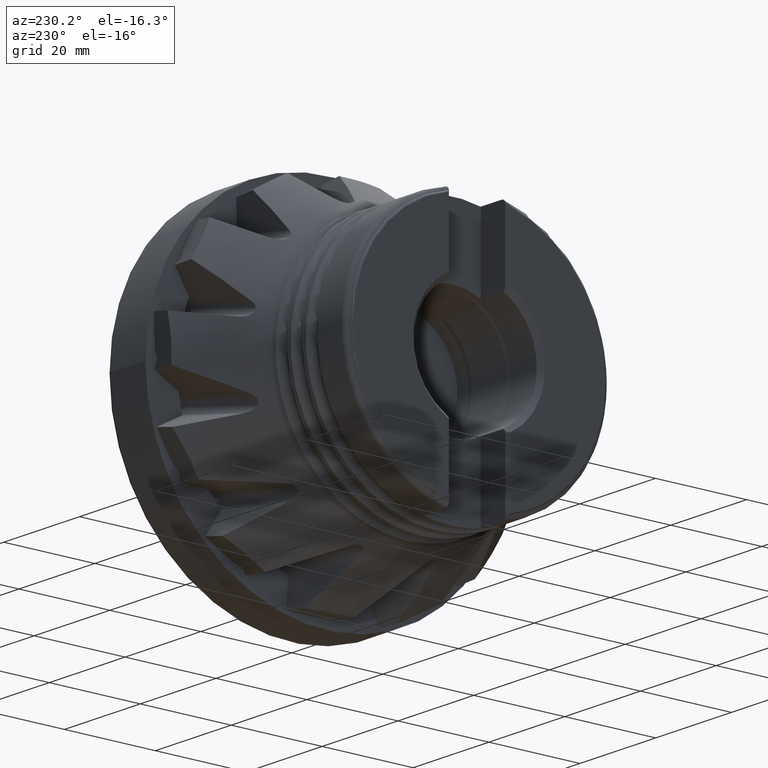
[diagram: clean part render]
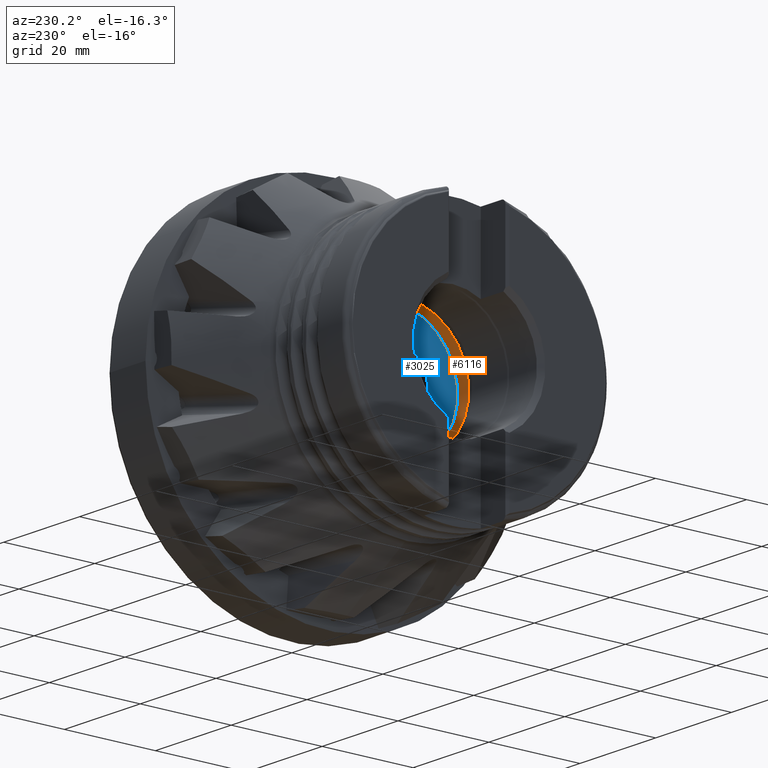
[diagram: same view with the hole feature highlighted: cylindrical wall and planar end face, labeled with their STEP entity ids]
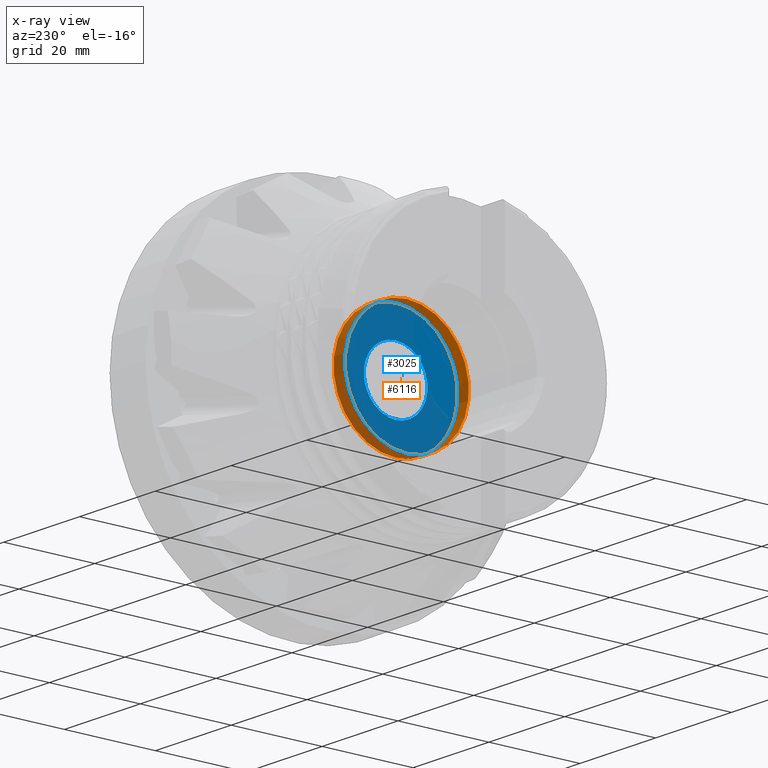
[diagram: x-ray of the same camera — body ghosted, the hole faces saturated]
A machine part, auxiliary view. The highlighted faces form one hole feature of diameter 27.3 mm: the cylindrical wall (entity #6116, orange) and its adjacent planar end face (entity #3025, blue) — they share a circular edge in the B-rep.
The next image is the same camera in x-ray (body ghosted, the hole faces saturated) — the bore reads through the body.
Wall:
#155 = DIRECTION ( 'NONE',  ( 0.0000000000000000000, 0.0000000000000000000, -1.000000000000000000 ) ) ;
#462 = CARTESIAN_POINT ( 'NONE',  ( -27.40000000000000200, 0.0000000000000000000, 0.0000000000000000000 ) ) ;
#1061 = ORIENTED_EDGE ( 'NONE', *, *, #8811, .T. ) ;
#1177 = DIRECTION ( 'NONE',  ( 0.0000000000000000000, 0.0000000000000000000, -1.000000000000000000 ) ) ;
#2870 = AXIS2_PLACEMENT_3D ( 'NONE', #462, #5503, #1177 ) ;
#3118 = EDGE_LOOP ( 'NONE', ( #4296 ) ) ;
#3567 = CIRCLE ( 'NONE', #4962, 13.64999999999999700 ) ;
#3657 = AXIS2_PLACEMENT_3D ( 'NONE', #4970, #8576, #9295 ) ;
#3751 = VERTEX_POINT ( 'NONE', #5663 ) ;
#4296 = ORIENTED_EDGE ( 'NONE', *, *, #8562, .F. ) ;
#4442 = CIRCLE ( 'NONE', #2870, 13.64999999999999700 ) ;
#4509 = DIRECTION ( 'NONE',  ( 1.000000000000000000, -0.0000000000000000000, -0.0000000000000000000 ) ) ;
#4962 = AXIS2_PLACEMENT_3D ( 'NONE', #8814, #4509, #155 ) ;
#4970 = CARTESIAN_POINT ( 'NONE',  ( 0.0000000000000000000, 0.0000000000000000000, 0.0000000000000000000 ) ) ;
#5445 = CYLINDRICAL_SURFACE ( 'NONE', #3657, 13.64999999999999700 ) ;
#5503 = DIRECTION ( 'NONE',  ( 1.000000000000000000, -0.0000000000000000000, -0.0000000000000000000 ) ) ;
#5663 = CARTESIAN_POINT ( 'NONE',  ( -30.33269454164236100, 0.0000000000000000000, -13.64999999999999700 ) ) ;
#6116 = ADVANCED_FACE ( 'NONE', ( #7123, #6573 ), #5445, .F. ) ;
#6395 = CARTESIAN_POINT ( 'NONE',  ( -27.40000000000000200, 0.0000000000000000000, -13.64999999999999700 ) ) ;
#6573 = FACE_OUTER_BOUND ( 'NONE', #6598, .T. ) ;
#6598 = EDGE_LOOP ( 'NONE', ( #1061 ) ) ;
#7123 = FACE_OUTER_BOUND ( 'NONE', #3118, .T. ) ;
#8562 = EDGE_CURVE ( 'NONE', #3751, #3751, #3567, .T. ) ;
#8576 = DIRECTION ( 'NONE',  ( 1.000000000000000000, -0.0000000000000000000, -0.0000000000000000000 ) ) ;
#8811 = EDGE_CURVE ( 'NONE', #9274, #9274, #4442, .T. ) ;
#8814 = CARTESIAN_POINT ( 'NONE',  ( -30.33269454164236100, 0.0000000000000000000, 0.0000000000000000000 ) ) ;
#9274 = VERTEX_POINT ( 'NONE', #6395 ) ;
#9295 = DIRECTION ( 'NONE',  ( 0.0000000000000000000, 0.0000000000000000000, -1.000000000000000000 ) ) ;
End face:
#93 = EDGE_LOOP ( 'NONE', ( #7221 ) ) ;
#330 = CIRCLE ( 'NONE', #1546, 6.999999999999965400 ) ;
#431 = EDGE_LOOP ( 'NONE', ( #7779 ) ) ;
#462 = CARTESIAN_POINT ( 'NONE',  ( -27.40000000000000200, 0.0000000000000000000, 0.0000000000000000000 ) ) ;
#517 = FACE_OUTER_BOUND ( 'NONE', #93, .T. ) ;
#592 = CARTESIAN_POINT ( 'NONE',  ( -27.40000000000000200, 0.0000000000000000000, -6.999999999999965400 ) ) ;
#747 = FACE_BOUND ( 'NONE', #431, .T. ) ;
#1177 = DIRECTION ( 'NONE',  ( 0.0000000000000000000, 0.0000000000000000000, -1.000000000000000000 ) ) ;
#1199 = CARTESIAN_POINT ( 'NONE',  ( -27.40000000000000200, 0.0000000000000000000, 0.0000000000000000000 ) ) ;
#1546 = AXIS2_PLACEMENT_3D ( 'NONE', #1199, #6263, #1954 ) ;
#1954 = DIRECTION ( 'NONE',  ( 0.0000000000000000000, 0.0000000000000000000, -1.000000000000000000 ) ) ;
#2016 = PLANE ( 'NONE',  #3837 ) ;
#2502 = VERTEX_POINT ( 'NONE', #592 ) ;
#2870 = AXIS2_PLACEMENT_3D ( 'NONE', #462, #5503, #1177 ) ;
#3025 = ADVANCED_FACE ( 'NONE', ( #747, #517 ), #2016, .F. ) ;
#3837 = AXIS2_PLACEMENT_3D ( 'NONE', #5592, #8509, #4208 ) ;
#4208 = DIRECTION ( 'NONE',  ( -0.0000000000000000000, 0.0000000000000000000, -1.000000000000000000 ) ) ;
#4442 = CIRCLE ( 'NONE', #2870, 13.64999999999999700 ) ;
#5503 = DIRECTION ( 'NONE',  ( 1.000000000000000000, -0.0000000000000000000, -0.0000000000000000000 ) ) ;
#5592 = CARTESIAN_POINT ( 'NONE',  ( -27.40000000000000200, 6.499999999999995600, 0.0000000000000000000 ) ) ;
#6263 = DIRECTION ( 'NONE',  ( 1.000000000000000000, -0.0000000000000000000, -0.0000000000000000000 ) ) ;
#6395 = CARTESIAN_POINT ( 'NONE',  ( -27.40000000000000200, 0.0000000000000000000, -13.64999999999999700 ) ) ;
#6571 = EDGE_CURVE ( 'NONE', #2502, #2502, #330, .T. ) ;
#7221 = ORIENTED_EDGE ( 'NONE', *, *, #8811, .F. ) ;
#7779 = ORIENTED_EDGE ( 'NONE', *, *, #6571, .T. ) ;
#8509 = DIRECTION ( 'NONE',  ( 1.000000000000000000, 0.0000000000000000000, -0.0000000000000000000 ) ) ;
#8811 = EDGE_CURVE ( 'NONE', #9274, #9274, #4442, .T. ) ;
#9274 = VERTEX_POINT ( 'NONE', #6395 ) ;